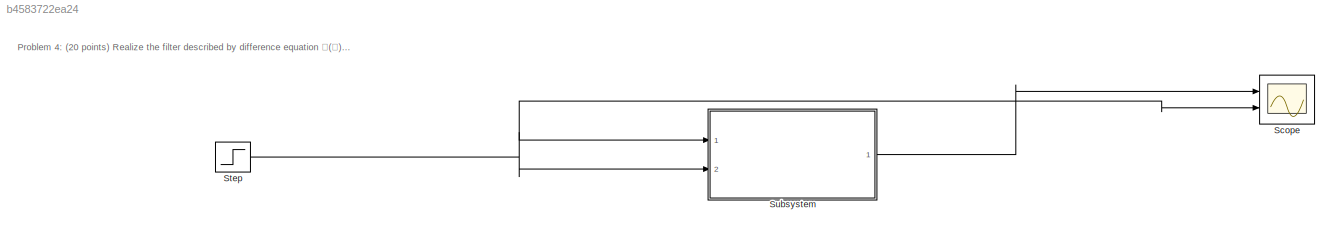
MODEL slx_b4583722ea24
KIND model
CONFIG AbsTol = auto
CONFIG EnableMultiTasking = off
CONFIG FixedStep = auto
CONFIG MaxStep = auto
CONFIG MinStep = auto
CONFIG RelTol = 1e-3
CONFIG SampleTimeConstraint = Unconstrained
CONFIG Solver = VariableStepAuto
CONFIG SolverName = VariableStepAuto
CONFIG StartTime = 0.0
CONFIG StopTime = 10.0
BLOCK [Scope] Scope
  Floating = off
  NumInputPorts = 2
  Ports = [2]
  ScopeSpecificationString = Simulink.scopes.TimeScopeBlockCfg('CurrentConfiguration', extmgr.ConfigurationSet(extmgr.Configuration('Core','General UI',true),extmgr.Configuration('Core','Source UI',true),extmgr.Configuration('Sources','WiredSimulink',true),extmgr.Configuration('Visuals','Time Domain',true,'SerializedDisplays',{struct('MinYLimReal','-0.28437','MaxYLimReal','2.55937','YLabelReal','','MinYLimMag','0.00000','MaxY...<+1374ch>
BLOCK [Step] Step
  SampleTime = 0
BLOCK [ModelReference] Subsystem
  ModelNameDialog = Subsystem2
  ModelReferenceVersion = 1.2
  Ports = [2, 1]
ANNOTATION (root): Problem 4: (20 points) Realize the filter described by difference equation 𝐲(𝐧) = 𝟎.𝟓∗𝐲(𝐧−𝟏) − 𝟎.𝟐𝟓∗𝐲(𝐧−𝟐) + 𝐱(𝐧) + 𝟎.𝟒∗𝐱(𝐧−𝟏)
NET Step:1 -> Scope:2, Subsystem:1, Subsystem:2
LINE Subsystem:1 -> Scope:1
note: NET lines group one-source signal fan-out (src -> all destinations, sorted); 1:1 wires keep LINE
